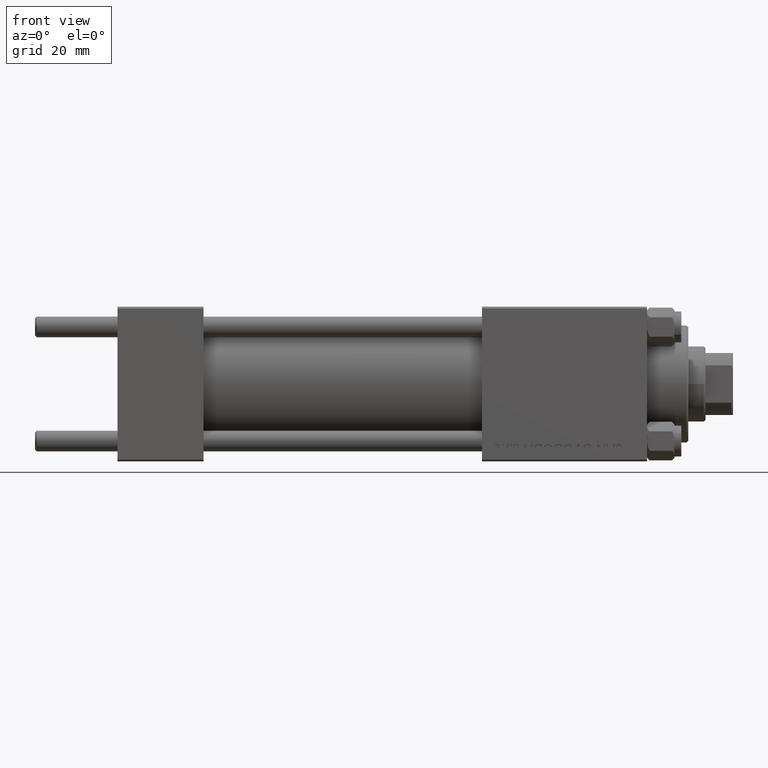
[diagram: clean part render]
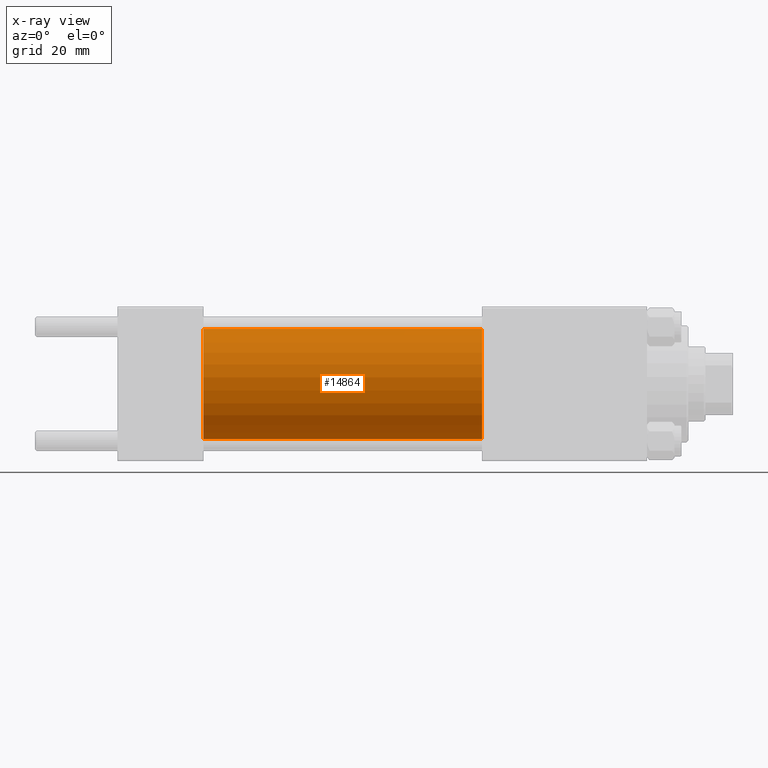
[diagram: x-ray — body ghosted, one internal face saturated and labeled with its STEP entity id]
A machine part, front view, then the same camera in x-ray: the body is ghosted and one INTERNAL B-rep face — a face not visible from any outside direction — is saturated and labeled: STEP entity #14864.
In plain terms, the highlighted cylindrical surface (partial cylindrical patch) has radius 16 mm, axis along (-1, -0, -0).
Its self-contained STEP definition (entity closure, byte-faithful):
#1204 = CARTESIAN_POINT ( 'NONE',  ( 106.0000000000000142, 1.959434878635765131E-15, -16.00000000000000000 ) ) ;
#1420 = ORIENTED_EDGE ( 'NONE', *, *, #7896, .F. ) ;
#2425 = CIRCLE ( 'NONE', #36293, 16.00000000000000000 ) ;
#2668 = EDGE_CURVE ( 'NONE', #43711, #43033, #4692, .T. ) ;
#4692 = CIRCLE ( 'NONE', #35361, 16.00000000000000000 ) ;
#6791 = CARTESIAN_POINT ( 'NONE',  ( 25.00000000000000000, 1.959434878635765131E-15, -16.00000000000000000 ) ) ;
#7247 = CARTESIAN_POINT ( 'NONE',  ( 106.0000000000000142, 1.959434878635765131E-15, -16.00000000000000000 ) ) ;
#7653 = DIRECTION ( 'NONE',  ( -1.000000000000000000, -0.000000000000000000, -0.000000000000000000 ) ) ;
#7896 = EDGE_CURVE ( 'NONE', #10629, #11673, #2425, .T. ) ;
#8683 = ORIENTED_EDGE ( 'NONE', *, *, #2668, .T. ) ;
#9216 = DIRECTION ( 'NONE',  ( 1.000000000000000000, 0.000000000000000000, 0.000000000000000000 ) ) ;
#9801 = LINE ( 'NONE', #1204, #26435 ) ;
#10115 = CARTESIAN_POINT ( 'NONE',  ( 106.0000000000000142, 0.000000000000000000, 16.00000000000000000 ) ) ;
#10629 = VERTEX_POINT ( 'NONE', #44843 ) ;
#11673 = VERTEX_POINT ( 'NONE', #6791 ) ;
#14864 = ADVANCED_FACE ( 'NONE', ( #38684 ), #20015, .F. ) ;
#18755 = CARTESIAN_POINT ( 'NONE',  ( 106.0000000000000142, 0.000000000000000000, 0.000000000000000000 ) ) ;
#19457 = AXIS2_PLACEMENT_3D ( 'NONE', #42478, #7653, #39438 ) ;
#20015 = CYLINDRICAL_SURFACE ( 'NONE', #19457, 16.00000000000000000 ) ;
#25598 = DIRECTION ( 'NONE',  ( 0.000000000000000000, 0.000000000000000000, -1.000000000000000000 ) ) ;
#26435 = VECTOR ( 'NONE', #40326, 1000.000000000000000 ) ;
#30442 = CARTESIAN_POINT ( 'NONE',  ( 106.0000000000000142, 0.000000000000000000, 16.00000000000000000 ) ) ;
#30593 = DIRECTION ( 'NONE',  ( 1.000000000000000000, 0.000000000000000000, 0.000000000000000000 ) ) ;
#35361 = AXIS2_PLACEMENT_3D ( 'NONE', #18755, #30593, #25598 ) ;
#36293 = AXIS2_PLACEMENT_3D ( 'NONE', #43777, #9216, #44284 ) ;
#37040 = EDGE_LOOP ( 'NONE', ( #8683, #40607, #1420, #47157 ) ) ;
#37113 = DIRECTION ( 'NONE',  ( -1.000000000000000000, -0.000000000000000000, -0.000000000000000000 ) ) ;
#38324 = VECTOR ( 'NONE', #37113, 1000.000000000000000 ) ;
#38684 = FACE_OUTER_BOUND ( 'NONE', #37040, .T. ) ;
#39246 = EDGE_CURVE ( 'NONE', #43711, #10629, #44671, .T. ) ;
#39438 = DIRECTION ( 'NONE',  ( 0.000000000000000000, 0.000000000000000000, 1.000000000000000000 ) ) ;
#40326 = DIRECTION ( 'NONE',  ( -1.000000000000000000, -0.000000000000000000, -0.000000000000000000 ) ) ;
#40607 = ORIENTED_EDGE ( 'NONE', *, *, #48571, .T. ) ;
#42478 = CARTESIAN_POINT ( 'NONE',  ( 106.0000000000000142, 0.000000000000000000, 0.000000000000000000 ) ) ;
#43033 = VERTEX_POINT ( 'NONE', #7247 ) ;
#43711 = VERTEX_POINT ( 'NONE', #30442 ) ;
#43777 = CARTESIAN_POINT ( 'NONE',  ( 25.00000000000000000, 0.000000000000000000, 0.000000000000000000 ) ) ;
#44284 = DIRECTION ( 'NONE',  ( 0.000000000000000000, 0.000000000000000000, -1.000000000000000000 ) ) ;
#44671 = LINE ( 'NONE', #10115, #38324 ) ;
#44843 = CARTESIAN_POINT ( 'NONE',  ( 25.00000000000000000, 0.000000000000000000, 16.00000000000000000 ) ) ;
#47157 = ORIENTED_EDGE ( 'NONE', *, *, #39246, .F. ) ;
#48571 = EDGE_CURVE ( 'NONE', #43033, #11673, #9801, .T. ) ;